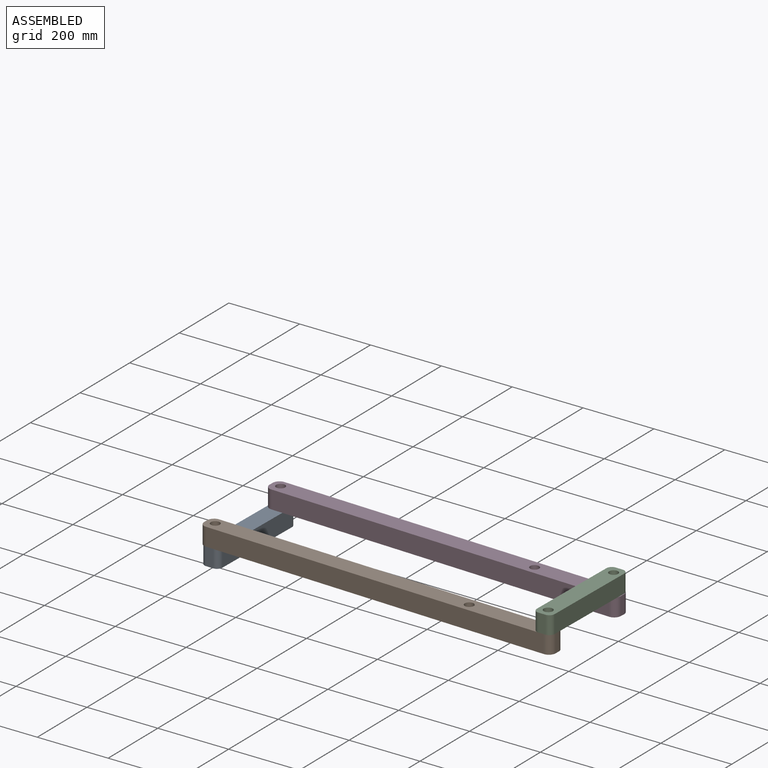
[diagram: assembled view]
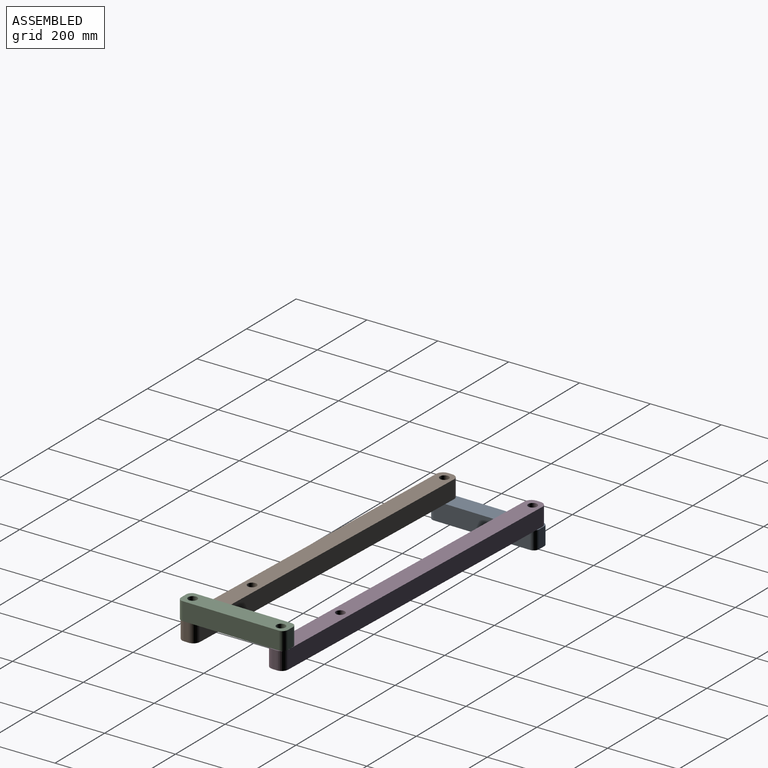
[diagram: assembled view, second angle]
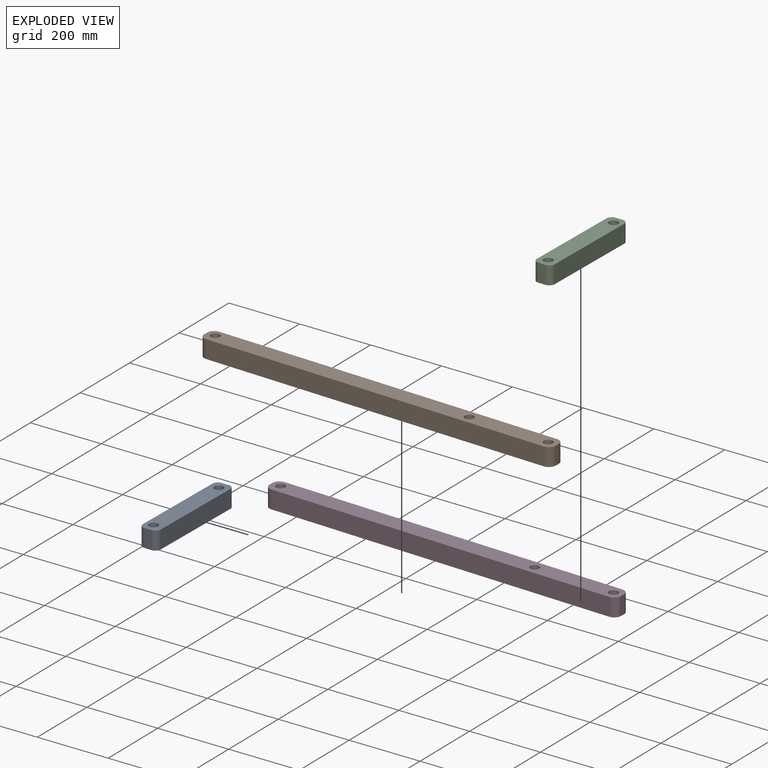
[diagram: exploded view]
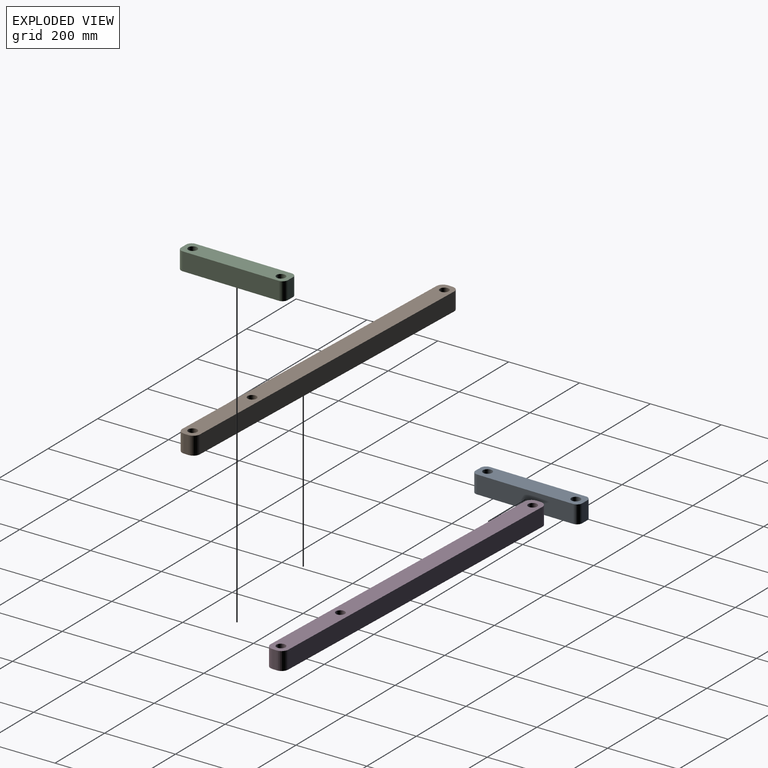
[diagram: exploded view, second angle]
ASSEMBLY  parts=4 mates=4
PART A: 12 faces, bbox 304.8x50.8x50.8 mm
  f0: plane 274.32x50.8mm, normal (0,1,0), area 13935.5mm2, adj f6,f7,f8,f11
  f1: plane 50.8x20.32mm, normal (-1,0,0), area 1032.3mm2, adj f6,f7,f8,f9
  f2: plane 274.32x50.8mm, normal (0,-1,0), area 13935.5mm2, adj f6,f7,f9,f10
  f3: cylinder r=12.7mm len=50.8mm, axis (0,0,-1), area 4053.7mm2, adj f6,f7
  f4: cylinder r=12.7mm len=50.8mm, axis (0,0,-1), area 4053.7mm2, adj f6,f7
  f5: plane 50.8x20.32mm, normal (1,0,0), area 1032.3mm2, adj f6,f7,f10,f11
  f6: plane 304.8x50.8mm, normal (0,0,1), area 14271.1mm2, adj f0,f1,f2,f3,f4,f5,f8,f9
  f7: plane 304.8x50.8mm, normal (0,0,-1), area 14271.1mm2, adj f0,f1,f2,f3,f4,f5,f8,f9
  f8: cylinder r=15.24mm len=50.8mm, axis (0,0,1), area 1216.1mm2, adj f0,f1,f6,f7
  f9: cylinder r=15.24mm len=50.8mm, axis (0,0,-1), area 1216.1mm2, adj f1,f2,f6,f7
  f10: cylinder r=15.24mm len=50.8mm, axis (0,0,1), area 1216.1mm2, adj f2,f5,f6,f7
  f11: cylinder r=15.24mm len=50.8mm, axis (0,0,-1), area 1216.1mm2, adj f0,f5,f6,f7
PART B: 13 faces, bbox 1016x50.8x50.8 mm
  f0: plane 977.9x50.8mm, normal (0,1,0), area 49677.3mm2, adj f7,f8,f9,f12
  f1: plane 50.8x12.7mm, normal (-1,0,0), area 645.2mm2, adj f7,f8,f9,f10
  f2: plane 977.9x50.8mm, normal (0,-1,0), area 49677.3mm2, adj f7,f8,f10,f11
  f3: cylinder r=12.7mm len=50.8mm, axis (0,0,-1), area 4053.7mm2, adj f7,f8
  f4: cylinder r=12.7mm len=50.8mm, axis (0,0,-1), area 4053.7mm2, adj f7,f8
  f5: cylinder r=12.7mm len=50.8mm, axis (0,0,-1), area 4053.7mm2, adj f7,f8
  f6: plane 50.8x12.7mm, normal (1,0,0), area 645.2mm2, adj f7,f8,f11,f12
  f7: plane 1016x50.8mm, normal (0,0,1), area 49781.2mm2, adj f0,f1,f2,f3,f4,f5,f6,f9
  f8: plane 1016x50.8mm, normal (0,0,-1), area 49781.2mm2, adj f0,f1,f2,f3,f4,f5,f6,f9
  f9: cylinder r=19.05mm len=50.8mm, axis (0,0,1), area 1520.1mm2, adj f0,f1,f7,f8
  f10: cylinder r=19.05mm len=50.8mm, axis (0,0,-1), area 1520.1mm2, adj f1,f2,f7,f8
  f11: cylinder r=19.05mm len=50.8mm, axis (0,0,1), area 1520.1mm2, adj f2,f6,f7,f8
  f12: cylinder r=19.05mm len=50.8mm, axis (0,0,-1), area 1520.1mm2, adj f0,f6,f7,f8
PART C: same geometry as A
PART D: same geometry as B
PLACE A rot(axis=(0,0,-1),91deg) t=(-248.3,-172.69,-216.97)mm
PLACE B rot(axis=(0,0,1),178.1deg) t=(169.63,62.59,-166.17)mm fixed
PLACE C rot(axis=(0,0,1),89deg) t=(442.24,-34.75,-115.37)mm
PLACE D rot(axis=(0,0,1),178.1deg) t=(176.33,316.51,-166.17)mm
MATE revolute A.f3 <-> D.f4  axis (0,0,1) through (-381.97,40.8,-166.17)mm
MATE revolute A.f4 <-> B.f4  axis (0,0,-1) through (-388.67,-213.13,-166.17)mm
MATE revolute C.f3 <-> B.f3  axis (0,0,-1) through (575.9,-248.24,-115.37)mm
MATE revolute D.f3 <-> C.f4  axis (0,0,-1) through (582.6,5.68,-115.37)mm
